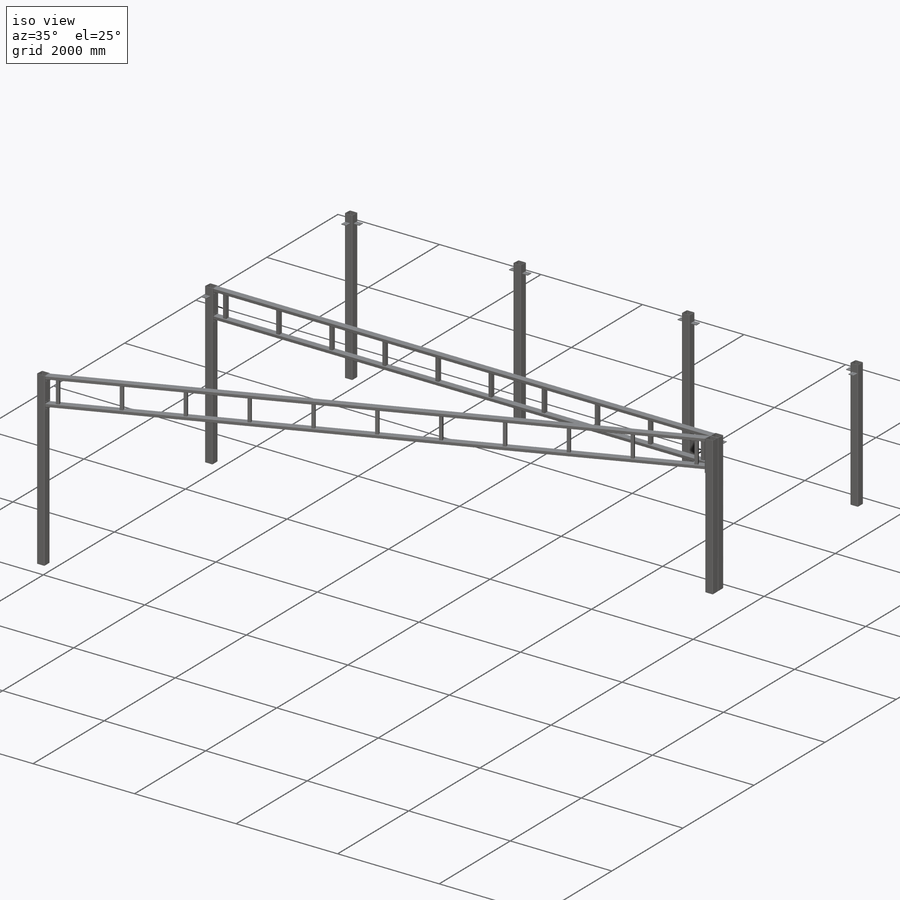
[diagram: iso view]
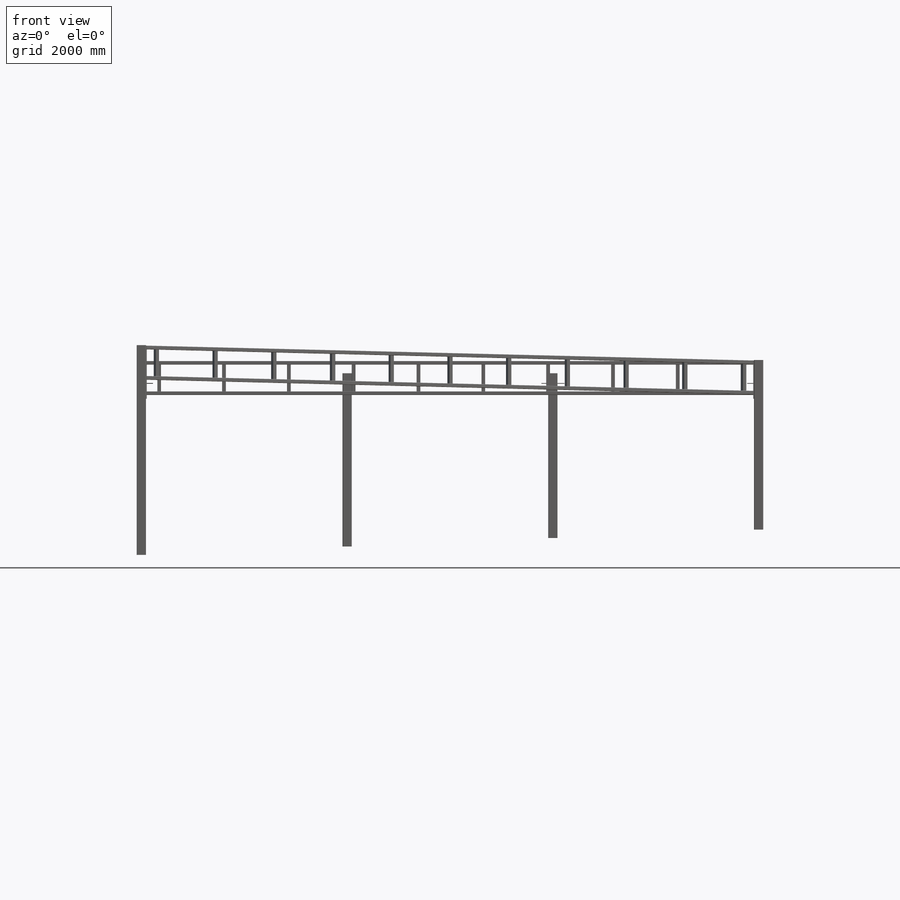
[diagram: front view]
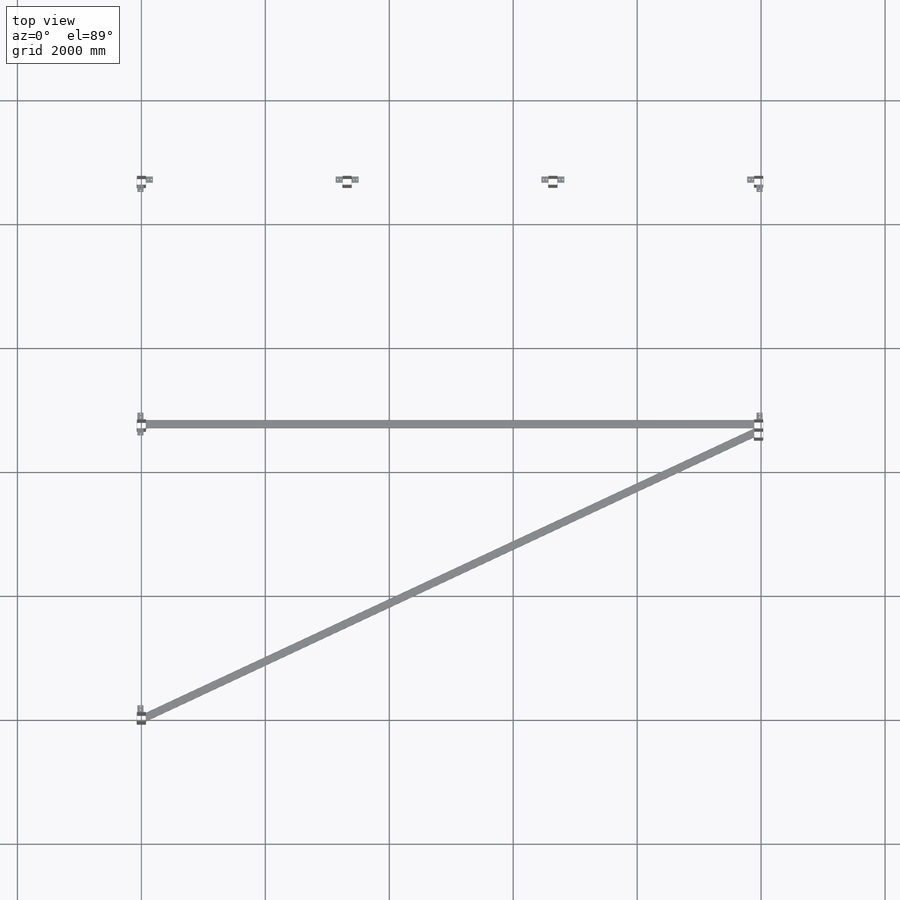
[diagram: top view]
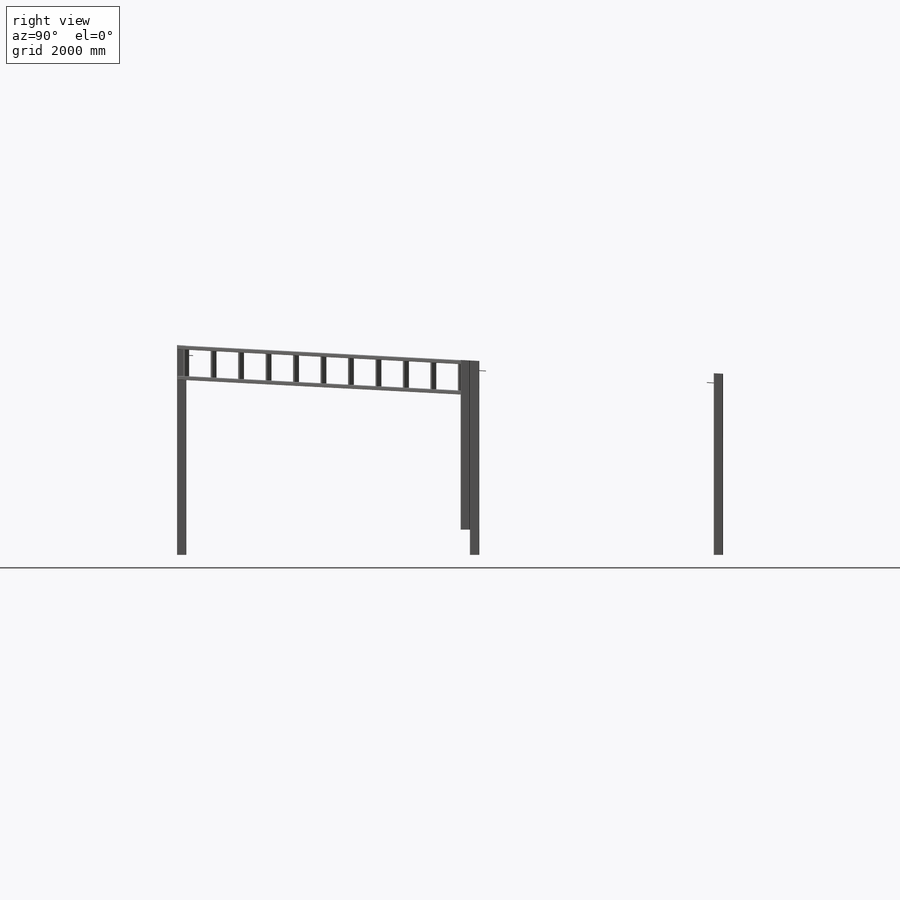
[diagram: right view]
SOLIDWORKS PART (.sldprt)
format: sldprt  version: not decoded by parser v0  size: 4,015,616 bytes
history: native  units: mm
features: sketch x57, plane x29, cut_extrude x16, mirror x10, pattern_linear x9, extrude x3, material x1 + 24 further entries (+10 scaffold rows collapsed)
feature tree (159):
  scaffold x10  (default folders/planes/origin — collapsed)
  material  "1.0037 (S235JR)"
  "Zuschnittslistenelement2"
  "Zuschnittslistenelement6"
  "Zuschnittslistenelement7"
  "Zuschnittslistenelement8"
  "Zuschnittslistenelement9"
  "Zuschnittslistenelement10"
  "Zuschnittslistenelement11"
  "Zuschnittslistenelement12"
  "Zuschnittslistenelement14"
  "Zuschnittslistenelement15"
  "Zuschnittslistenelement16"
  "Zuschnittslistenelement17"
  "Zuschnittslistenelement18"
  "Zuschnittslistenelement20"
  "Zuschnittslistenelement21"
  "Zuschnittslistenelement22"
  "Zuschnittslistenelement23"
  "Zuschnittslistenelement26"
  "Zuschnittslistenelement27"
  "Zuschnittslistenelement28"
  "Zuschnittslistenelement30"
  "Zuschnittslistenelement31"
  "Zuschnittslistenelement32"
  "Zuschnittslistenelement33"
  plane  "Ebene vorne"
  plane  "Ebene oben"
  plane  "Ebene rechts"
  sketch  "Skizze1"  dims[D1=3600.0mm]
  plane  "Ebene1"
  sketch  "Skizze13"  dims[D3=12.0mm D1=150.0mm D2=150.0mm D4=5.0mm]
  pattern_linear  "Lineares Muster2"  Count1=2 Count2=2 Spacing1=8660.84mm Spacing2=9960mm
  pattern_linear  "Lineares Muster4"  Count1=2 Count2=1 Spacing1=4726.97mm Spacing2=9960mm
  pattern_linear  "Lineares Muster5"  Count1=3 Count2=1 Spacing1=3320mm Spacing2=9960mm
  plane  "Ebene2"  Offset=4651.97mm
  sketch  "Skizze21"
  cut_extrude  "Schnitt-Linear austragen4"  [1 undecoded]
  sketch  "Skizze17"  dims[D1=200.0mm]
  cut_extrude  "Schnitt-Linear austragen3"  [1 undecoded]
  sketch  "Skizze16"  dims[D1=200.0mm]
  plane  "Ebene3"
  sketch  "Skizze19"  dims[D3=12.0mm D1=150.0mm D2=150.0mm D4=5.0mm]
  cut_extrude  "Schnitt-Linear austragen7"  [1 undecoded]
  sketch  "Skizze23"
  cut_extrude  "Schnitt-Linear austragen8"  [1 undecoded]
  sketch  "Skizze24"  dims[c1.D1=3400.0mm c1.D2=8810.84mm c2.D2=3.0deg]
  plane  "Ebene4"
  sketch  "Skizze25"  dims[D1=135.0mm D2=12.0mm]
  extrude  "Aufsatz-Linear austragen1"  Depth=610mm
  sketch  "Skizze27"  dims[c1.D3=17.5mm c1.D4=17.5mm c1.D10=17.5mm c1.D11=17.5mm c1.D1=25.0mm c1.D2=25.0mm c2.D4=90.0mm c2.D7=90.0deg c2.D8=85.0mm c2.D9=370.0mm c2.D11=30.0mm c2.D5=2.0 c2.D6=2.0]
  cut_extrude  "Schnitt-Linear austragen9"  Depth=100mm
  plane  "Ebene5"
  sketch  "Skizze28"  dims[D1=12.0mm D2=135.0mm D3=7.5mm]
  extrude  "Aufsatz-Linear austragen2"  Depth=610mm
  sketch  "Skizze29"  dims[c1.D3=17.5mm c1.D10=17.5mm c1.D1=25.0mm c1.D2=25.0mm c1.D4=90.0mm c1.D7=90.0deg c1.D8=85.0mm c1.D9=370.0mm c2.D10=30.0mm c2.D5=2.0 c2.D6=2.0]
  cut_extrude  "Schnitt-Linear austragen10"  Depth=50mm
  sketch  "Skizze30"  dims[c1.D1=9786.0mm c2.D1=~25.06577deg]
  sketch  "Skizze31"
  plane  "Ebene6"
  sketch  "Skizze32"  dims[D1=90.0mm D2=30.0mm D3=30.0mm D4=90.0mm]
  plane  "Ebene7"
  sketch  "Skizze110"  dims[D3=8.0mm D1=120.0mm D2=60.0mm D4=4.0mm]
  sketch  "Skizze111"
  cut_extrude  "Schnitt-Linear austragen11"  Depth=2000mm
  sketch  "Skizze112"  dims[D1=171.5mm]
  plane  "Ebene8"
  sketch  "Skizze114"  dims[D3=4.0mm D1=80.0mm D2=60.0mm D4=3.0mm]
  sketch  "Skizze115"
  cut_extrude  "Schnitt-Linear austragen12"  Depth=200mm
  pattern_linear  "Lineares Muster7"  Count1=11 Count2=1 Spacing1=1046.23mm Spacing2=4576.97mm
  pattern_linear  "Lineares Muster8"  Count1=2 Count2=1 Spacing1=150mm Spacing2=4576.97mm
  sketch  "Skizze116"  dims[D1=135.0mm D2=610.0mm]
  extrude  "Aufsatz-Linear austragen3"  Depth=12mm
  plane  "Ebene9"
  mirror  "Spiegeln2"
  plane  "Ebene10"
  sketch  "Skizze118"  dims[D1=30.0mm D2=90.0mm]
  plane  "Ebene11"
  sketch  "Skizze119"  dims[D3=8.0mm D1=120.0mm D2=60.0mm D4=4.0mm]
  sketch  "Skizze121"  dims[D1=171.5mm]
  plane  "Ebene12"
  sketch  "Skizze120"  dims[D3=4.0mm D1=80.0mm D2=60.0mm D4=3.0mm]
  pattern_linear  "Lineares Muster9"  Count1=10 Count2=1 Spacing1=1046mm Spacing2=4576.97mm
  cut_extrude  "Schnitt-Linear austragen13"  [1 undecoded]
  sketch  "Skizze122"  dims[D1=503.0mm]
  plane  "Ebene13"  Offset=60mm
  sketch  "Skizze123"  dims[c1.D1=100.0mm c1.D2=8735.84mm c2.D2=~0.29567deg c3.D2=~99.862953mm c3.D1=150.0mm c4.D2=110.0mm c4.D1=100.0mm c4.D5=12.0mm c4.D6=1.0mm c4.D7=5.0mm]
  sketch  "Skizze124"  dims[D1=110.0mm]
  mirror  "Linear-Austragen-Dünn2"
  sketch  "Skizze125"  dims[D1=110.0mm]
  mirror  "Linear-Austragen-Dünn3"
  sketch  "Skizze126"  dims[D1=110.0mm]
  mirror  "Linear-Austragen-Dünn4"
  sketch  "Skizze127"  dims[c1.D1=~23.131008mm c1.D2=~23.131008mm c1.D3=17.5mm c1.D4=17.5mm c1.D5=17.5mm c1.D6=17.5mm c1.D7=17.5mm c1.D8=17.5mm c1.D9=17.5mm c1.D10=17.5mm c1.D11=17.5mm c2.D1=25.0mm c2.D2=50.0mm c2.D4=25.0mm c2.D5=50.0mm c2.D7=25.0mm c2.D8=50.0mm c2.D10=25.0mm c2.D11=50.0mm]
  cut_extrude  "Schnitt-Linear austragen14"  Depth=12mm
  plane  "Ebene14"  Offset=60mm
  sketch  "Skizze128"  dims[D1=150.0mm D2=110.0mm]
  mirror  "Linear-Austragen-Dünn5"
  sketch  "Skizze129"  dims[c1.D2=~17.204145mm c1.D3=~18.168764mm c1.D4=17.5mm c1.D1=50.0mm c2.D2=25.0mm c2.D3=50.0mm]
  cut_extrude  "Schnitt-Linear austragen15"  Depth=12mm
  pattern_linear  "Lineares Muster10"  Count1=2 Count2=1 Spacing1=3060mm Spacing2=4576.97mm
  pattern_linear  "Lineares Muster12"  Count1=3 Count2=1 Spacing1=3320mm Spacing2=4576.97mm
  plane  "Ebene15"  Offset=60mm
  sketch  "Skizze130"
  mirror  "Linear-Austragen-Dünn6"
  sketch  "Skizze131"
  mirror  "Linear-Austragen-Dünn7"
  sketch  "Skizze132"  dims[c1.D1=~26.779784mm c1.D2=~26.779784mm c1.D3=17.5mm c1.D4=~4.697552mm c1.D5=~17.759773mm c1.D6=17.5mm c1.D7=17.5mm c2.D1=25.0mm c2.D2=50.0mm c2.D4=50.0mm c2.D5=25.0mm c2.D7=50.0mm]
  cut_extrude  "Schnitt-Linear austragen16"  Depth=100mm
  sketch  "Skizze133"  dims[D1=75.0mm D2=5.0mm D3=5.0mm D4=5.0mm D5=5.0mm]
  plane  "Ebene17"
  sketch  "Skizze134"  dims[D3=10.0mm D1=150.0mm D2=100.0mm D4=3.0mm]
  sketch  "Skizze135"
  cut_extrude  "Schnitt-Linear austragen17"  [1 undecoded]
  sketch  "Skizze136"
  cut_extrude  "Schnitt-Linear austragen18"  Depth=20mm
  sketch  "Skizze137"  dims[c1.D1=110.0mm c2.D1=~0.933968deg c3.D1=75.0mm]
  plane  "Ebene18"
  sketch  "Skizze138"  dims[D3=10.0mm D1=150.0mm D2=100.0mm D4=3.0mm]
  sketch  "Skizze139"  dims[D1=75.0mm]
  plane  "Ebene19"
  sketch  "Skizze140"  dims[D3=10.0mm D1=150.0mm D2=100.0mm D4=3.0mm]
  sketch  "Skizze141"
  cut_extrude  "Schnitt-Linear austragen19"  [1 undecoded]
  sketch  "Skizze143"
  cut_extrude  "Schnitt-Linear austragen20"  Depth=20mm
  plane  "Ebene20"  Offset=60mm
  sketch  "Skizze145"  dims[c1.D1=110.0mm c1.D2=642.0mm c1.D3=12.0mm c1.D4=110.0mm c1.D5=12.0mm c1.D6=110.0mm c1.D7=200.0mm c1.D8=200.0mm c1.D9=110.0mm c1.D10=110.0mm c1.D11=12.0mm c1.D12=110.0mm c1.D13=12.0mm c1.D14=200.0mm c1.D15=110.0mm c2.D2=642.0mm]
  mirror  "Linear-Austragen-Dünn8"
  pattern_linear  "Lineares Muster13"  Count1=3 Count2=1 Spacing1=3320mm Spacing2=10mm
  sketch  "Skizze146"  dims[D1=40.0mm D2=40.0mm D3=40.0mm D4=40.0mm]
  plane  "Ebene21"
  sketch  "Skizze148"  dims[D3=8.0mm D1=80.0mm D2=80.0mm D4=3.6mm]
  plane  "Ebene22"  Offset=60mm
  sketch  "Skizze149"  dims[c1.D1=110.0mm c1.D2=200.0mm c1.D3=110.0mm c1.D4=200.0mm c1.D5=110.0mm c1.D6=110.0mm c1.D7=642.0mm c1.D8=12.0mm c2.D4=12.0mm]
  mirror  "Linear-Austragen-Dünn9"
  sketch  "Skizze150"  dims[D1=40.0mm D2=40.0mm]
  plane  "Ebene23"
  sketch  "Skizze151"  dims[D3=8.0mm D1=80.0mm D2=80.0mm D4=3.6mm]
  plane  "Ebene24"  Offset=60mm
  sketch  "Skizze152"  dims[D1=110.0mm D2=110.0mm D3=12.0mm D4=110.0mm D5=110.0mm D6=12.0mm D7=110.0mm D8=649.0mm D9=110.0mm D10=110.0mm D11=12.0mm D12=110.0mm D13=12.0mm D14=12.0mm]
  mirror  "Linear-Austragen-Dünn10"
  sketch  "Skizze153"  dims[D1=40.0mm D2=40.0mm D3=40.0mm D4=40.0mm]
  plane  "Ebene25"
  sketch  "Skizze154"  dims[D3=8.0mm D1=80.0mm D2=80.0mm D4=3.6mm]
  plane  "Ebene26"  Offset=40mm
  sketch  "Skizze156"
  plane  "Ebene27"
  sketch  "Skizze158"  dims[D3=8.0mm D1=80.0mm D2=80.0mm D4=3.6mm]
decode coverage: 66 of 95 modeling features carry decoded parameters; 24 rows unclassified (native names shown)
note: ~ marks probable driven/reference dimensions
note: 7 parameter values undecoded
summary: no parameter record found for 7 features
note: suppression state not decoded; provenance and decode notes live in map.json
